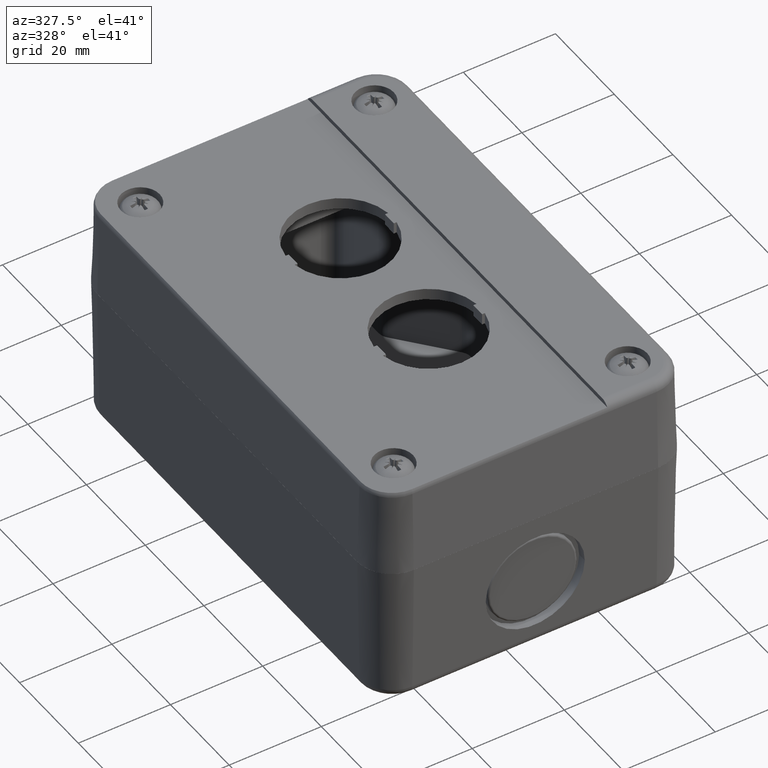
[diagram: clean part render]
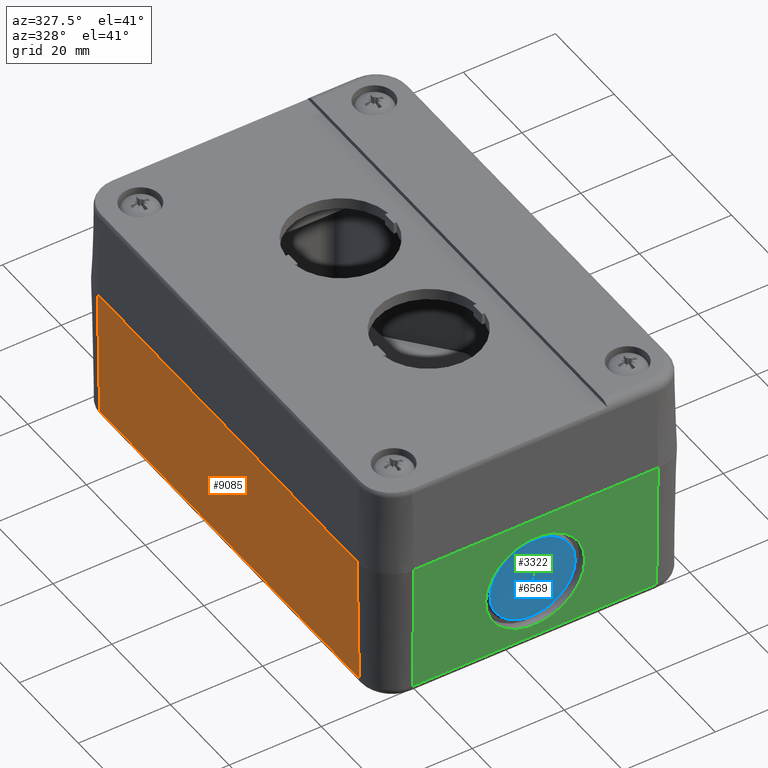
[diagram: same view with three faces highlighted in distinct colors, each labeled with its STEP entity id]
A machine part, auxiliary view with three faces highlighted in distinct colors.
Their STEP definitions:

[orange] entity #9085 — the highlighted planar face has unit normal (-0.9998, -0, -0.0175).
#3171=CARTESIAN_POINT('',(-49.406850161259896,-16.327564896536423,1.965095187125426));
#3172=VERTEX_POINT('',#3171);
#3207=CARTESIAN_POINT('',(-49.406850161259925,72.172435103463599,1.965095187125426));
#3208=VERTEX_POINT('',#3207);
#3240=CARTESIAN_POINT('',(-49.406850161259896,-16.327564896536423,1.965095187125426));
#3241=DIRECTION('',(0.0,1.0,0.0));
#3242=VECTOR('',#3241,88.500000000000028);
#3243=LINE('',#3240,#3242);
#3244=EDGE_CURVE('',#3172,#3208,#3243,.T.);
#3270=CARTESIAN_POINT('',(-49.906674283981957,-16.327564896536426,30.600000000000005));
#3271=VERTEX_POINT('',#3270);
#3279=CARTESIAN_POINT('',(-49.406850161259896,-16.327564896536423,1.965095187125426));
#3280=DIRECTION('',(-0.017452406437284,-1.240504E-016,0.999847695156391));
#3281=VECTOR('',#3280,28.639266711912207);
#3282=LINE('',#3279,#3281);
#3283=EDGE_CURVE('',#3172,#3271,#3282,.T.);
#9062=CARTESIAN_POINT('',(-49.372549297178494,-16.327564896536423,0.0));
#9063=DIRECTION('',(-0.999847695156391,-3.010316E-016,-0.017452406437283));
#9064=DIRECTION('',(0.0,-1.0,0.0));
#9065=AXIS2_PLACEMENT_3D('',#9062,#9063,#9064);
#9066=PLANE('',#9065);
#9067=ORIENTED_EDGE('',*,*,#3244,.F.);
#9068=ORIENTED_EDGE('',*,*,#3283,.T.);
#9069=CARTESIAN_POINT('',(-49.906674283982007,72.172435103463599,30.600000000000005));
#9070=VERTEX_POINT('',#9069);
#9071=CARTESIAN_POINT('',(-49.906674283981957,-16.327564896536426,30.600000000000005));
#9072=DIRECTION('',(0.0,1.0,0.0));
#9073=VECTOR('',#9072,88.500000000000028);
#9074=LINE('',#9071,#9073);
#9075=EDGE_CURVE('',#3271,#9070,#9074,.T.);
#9076=ORIENTED_EDGE('',*,*,#9075,.T.);
#9077=CARTESIAN_POINT('',(-49.406850161259925,72.172435103463599,1.965095187125426));
#9078=DIRECTION('',(-0.017452406437284,0.0,0.999847695156391));
#9079=VECTOR('',#9078,28.639266711912207);
#9080=LINE('',#9077,#9079);
#9081=EDGE_CURVE('',#3208,#9070,#9080,.T.);
#9082=ORIENTED_EDGE('',*,*,#9081,.F.);
#9083=EDGE_LOOP('',(#9067,#9068,#9076,#9082));
#9084=FACE_OUTER_BOUND('',#9083,.T.);
#9085=ADVANCED_FACE('',(#9084),#9066,.T.);

[blue] entity #6569 — the highlighted planar face has unit normal (-0, 0.9998, 0.0175).
#6518=CARTESIAN_POINT('',(-6.622549297178500,-22.694764464297389,15.315707165793551));
#6519=VERTEX_POINT('',#6518);
#6520=CARTESIAN_POINT('',(-15.872549297178500,-22.694764464297393,15.315707165793553));
#6521=DIRECTION('',(0.0,0.999847695156391,0.017452406437283));
#6522=DIRECTION('',(-1.0,0.0,0.0));
#6523=AXIS2_PLACEMENT_3D('',#6520,#6521,#6522);
#6524=CIRCLE('',#6523,9.250000000000000);
#6525=EDGE_CURVE('',#6519,#6519,#6524,.T.);
#6561=CARTESIAN_POINT('',(-15.872549297178500,-22.694764464297393,15.315707165793553));
#6562=DIRECTION('',(-5.026659E-016,0.999847695156391,0.017452406437283));
#6563=DIRECTION('',(0.0,-0.017452406437283,0.999847695156391));
#6564=AXIS2_PLACEMENT_3D('',#6561,#6562,#6563);
#6565=PLANE('',#6564);
#6566=ORIENTED_EDGE('',*,*,#6525,.F.);
#6567=EDGE_LOOP('',(#6566));
#6568=FACE_OUTER_BOUND('',#6567,.T.);
#6569=ADVANCED_FACE('',(#6568),#6565,.F.);

[green] entity #3322 — the highlighted planar face has unit normal (0, -0.9998, -0.0175).
#3039=CARTESIAN_POINT('',(10.627450702821495,-23.361865760617803,1.965095187125425));
#3040=VERTEX_POINT('',#3039);
#3107=CARTESIAN_POINT('',(-42.372549297178494,-23.361865760617832,1.965095187125433));
#3108=VERTEX_POINT('',#3107);
#3125=CARTESIAN_POINT('',(10.627450702821495,-23.361865760617803,1.965095187125425));
#3126=DIRECTION('',(-1.0,0.0,0.0));
#3127=VECTOR('',#3126,52.999999999999986);
#3128=LINE('',#3125,#3127);
#3129=EDGE_CURVE('',#3040,#3108,#3128,.T.);
#3262=CARTESIAN_POINT('',(-42.372549297178494,-23.861689883339888,30.600000000000005));
#3263=VERTEX_POINT('',#3262);
#3264=CARTESIAN_POINT('',(-42.372549297178494,-23.361865760617832,1.965095187125433));
#3265=DIRECTION('',(0.0,-0.017452406437284,0.999847695156391));
#3266=VECTOR('',#3265,28.639266711912203);
#3267=LINE('',#3264,#3266);
#3268=EDGE_CURVE('',#3108,#3263,#3267,.T.);
#3288=CARTESIAN_POINT('',(10.627450702821495,-23.327564896536401,0.0));
#3289=DIRECTION('',(5.026659E-016,-0.999847695156391,-0.017452406437283));
#3290=DIRECTION('',(1.0,0.0,0.0));
#3291=AXIS2_PLACEMENT_3D('',#3288,#3289,#3290);
#3292=PLANE('',#3291);
#3293=ORIENTED_EDGE('',*,*,#3129,.F.);
#3294=CARTESIAN_POINT('',(10.627450702821495,-23.861689883339857,30.600000000000005));
#3295=VERTEX_POINT('',#3294);
#3296=CARTESIAN_POINT('',(10.627450702821495,-23.361865760617803,1.965095187125425));
#3297=DIRECTION('',(0.0,-0.017452406437283,0.999847695156391));
#3298=VECTOR('',#3297,28.639266711912207);
#3299=LINE('',#3296,#3298);
#3300=EDGE_CURVE('',#3040,#3295,#3299,.T.);
#3301=ORIENTED_EDGE('',*,*,#3300,.T.);
#3302=CARTESIAN_POINT('',(10.627450702821495,-23.861689883339857,30.600000000000005));
#3303=DIRECTION('',(-1.0,0.0,0.0));
#3304=VECTOR('',#3303,52.999999999999986);
#3305=LINE('',#3302,#3304);
#3306=EDGE_CURVE('',#3295,#3263,#3305,.T.);
#3307=ORIENTED_EDGE('',*,*,#3306,.T.);
#3308=ORIENTED_EDGE('',*,*,#3268,.F.);
#3309=EDGE_LOOP('',(#3293,#3301,#3307,#3308));
#3310=FACE_OUTER_BOUND('',#3309,.T.);
#3311=CARTESIAN_POINT('',(-5.122549297178500,-23.594627389938140,15.300000000000002));
#3312=VERTEX_POINT('',#3311);
#3313=CARTESIAN_POINT('',(-15.872549297178500,-23.594627389938147,15.300000000000001));
#3314=DIRECTION('',(0.0,0.999847695156391,0.017452406437283));
#3315=DIRECTION('',(-1.0,0.0,0.0));
#3316=AXIS2_PLACEMENT_3D('',#3313,#3314,#3315);
#3317=CIRCLE('',#3316,10.750000000000000);
#3318=EDGE_CURVE('',#3312,#3312,#3317,.T.);
#3319=ORIENTED_EDGE('',*,*,#3318,.T.);
#3320=EDGE_LOOP('',(#3319));
#3321=FACE_BOUND('',#3320,.T.);
#3322=ADVANCED_FACE('',(#3310,#3321),#3292,.T.);